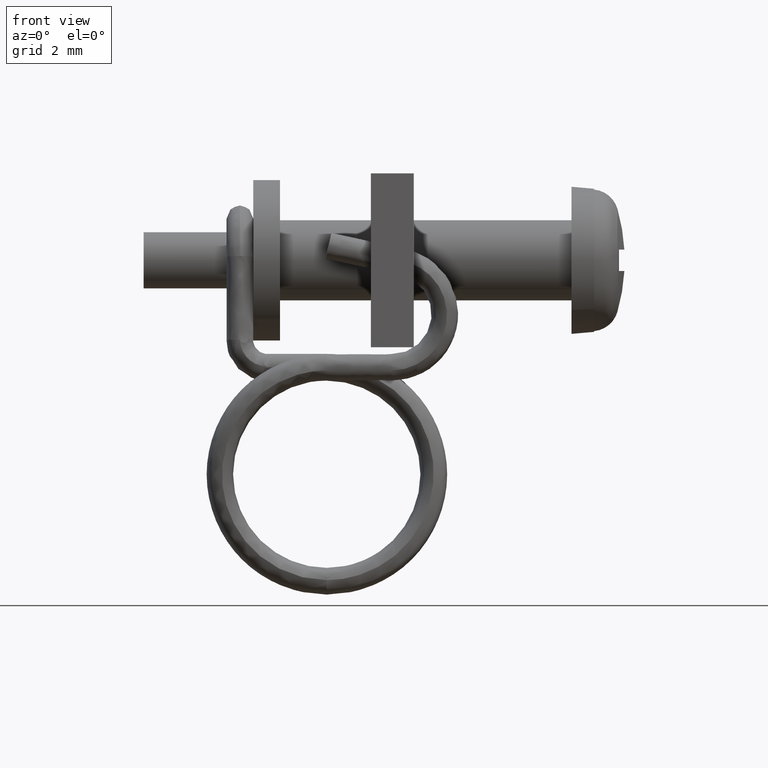
[diagram: clean part render]
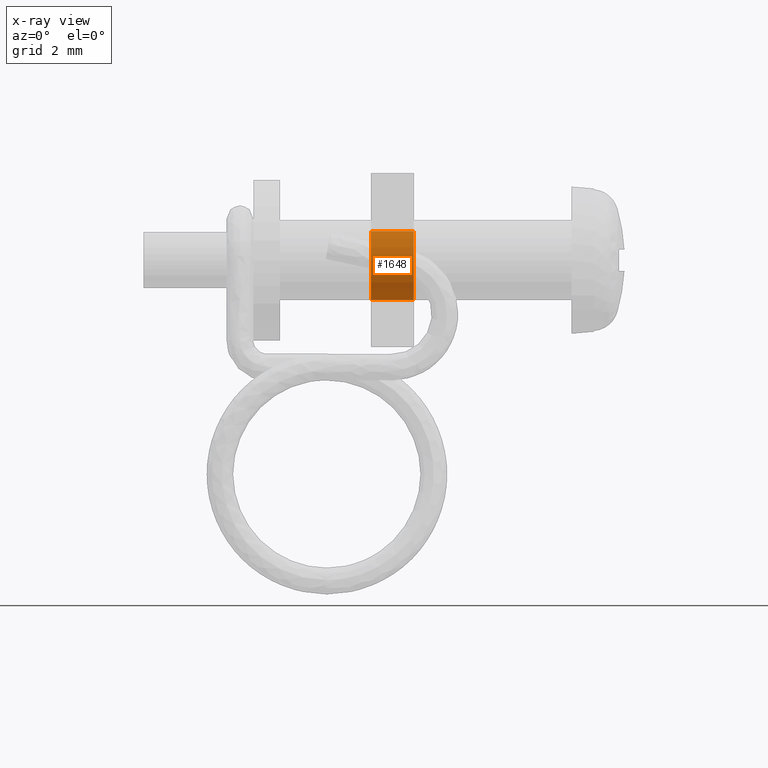
[diagram: x-ray — body ghosted, one internal face saturated and labeled with its STEP entity id]
A machine part, front view, then the same camera in x-ray: the body is ghosted and one INTERNAL B-rep face — a face not visible from any outside direction — is saturated and labeled: STEP entity #1648.
In plain terms, the highlighted face is a freeform B-spline surface patch.
Its self-contained STEP definition (entity closure, byte-faithful):
#1535=CARTESIAN_POINT('',(-7.540000000000000,-1.032531863540631,1.088061556518261));
#1536=CARTESIAN_POINT('',(-7.540000000000000,-2.120593420059062,0.055529692977630));
#1537=CARTESIAN_POINT('',(-7.540000000000000,-1.088061556518431,-1.032531863540801));
#1538=CARTESIAN_POINT('',(-7.540000000000000,-0.055529692977800,-2.120593420059232));
#1539=CARTESIAN_POINT('',(-7.540000000000000,1.032531863540631,-1.088061556518602));
#1540=CARTESIAN_POINT('',(-5.858999999999998,-1.032531863540631,1.088061556518261));
#1541=CARTESIAN_POINT('',(-5.858999999999999,-2.120593420059062,0.055529692977630));
#1542=CARTESIAN_POINT('',(-5.858999999999998,-1.088061556518431,-1.032531863540801));
#1543=CARTESIAN_POINT('',(-5.858999999999999,-0.055529692977800,-2.120593420059232));
#1544=CARTESIAN_POINT('',(-5.858999999999998,1.032531863540631,-1.088061556518602));
#1552=(BOUNDED_SURFACE()B_SPLINE_SURFACE(2,1,((#1535,#1540),(#1536,#1541),(#1537,#1542),(#1538,#1543),(#1539,#1544)),.UNSPECIFIED.,.F.,.F.,.U.)B_SPLINE_SURFACE_WITH_KNOTS((3,2,3),(2,2),(3.141592653589793,4.712388980384690,6.283185307179586),(0.0,1.0),.UNSPECIFIED.)GEOMETRIC_REPRESENTATION_ITEM()RATIONAL_B_SPLINE_SURFACE(((1.0,1.0),(0.707106781186548,0.707106781186548),(1.0,1.0),(0.707106781186548,0.707106781186548),(1.0,1.0)))REPRESENTATION_ITEM('')SURFACE());
#1553=CARTESIAN_POINT('',(-5.900000000000803,-1.032531800917459,1.088061519046354));
#1554=VERTEX_POINT('',#1553);
#1555=CARTESIAN_POINT('',(-5.900000000000000,-1.499999999999974,-0.000000281538430));
#1556=VERTEX_POINT('',#1555);
#1557=CARTESIAN_POINT('',(-5.900000000000803,-1.032531800917459,1.088061519046354));
#1558=CARTESIAN_POINT('',(-5.900000000000751,-1.101527649924507,1.022601850575404));
#1559=CARTESIAN_POINT('',(-5.900000000000656,-1.231182816334653,0.873691384280088));
#1560=CARTESIAN_POINT('',(-5.900000000000412,-1.386354415331849,0.602685362621365));
#1561=CARTESIAN_POINT('',(-5.900000000000290,-1.480044464424608,0.304338985804789));
#1562=CARTESIAN_POINT('',(-5.900000000000042,-1.500008408886573,0.095106643470198));
#1563=CARTESIAN_POINT('',(-5.900000000000000,-1.499999999999974,-0.000000281538430));
#1564=B_SPLINE_CURVE_WITH_KNOTS('',3,(#1557,#1558,#1559,#1560,#1561,#1562,#1563),.UNSPECIFIED.,.F.,.U.,(4,1,1,1,4),(7.158372E-009,0.285322418852800,0.589669938008324,0.932053386780087,1.217375582058588),.UNSPECIFIED.);
#1565=EDGE_CURVE('',#1554,#1556,#1564,.T.);
#1566=ORIENTED_EDGE('',*,*,#1565,.T.);
#1567=CARTESIAN_POINT('',(-5.900000000000000,0.0,-1.500000000000171));
#1568=VERTEX_POINT('',#1567);
#1569=CARTESIAN_POINT('',(-5.900000000000000,-1.499999999999974,-0.000000281538430));
#1570=CARTESIAN_POINT('',(-5.899999999999992,-1.500113129951142,-0.165688642252088));
#1571=CARTESIAN_POINT('',(-5.900000000000005,-1.461998231465147,-0.392646179399904));
#1572=CARTESIAN_POINT('',(-5.900000000000000,-1.339630095209663,-0.687975175501430));
#1573=CARTESIAN_POINT('',(-5.899999999999995,-1.189265077941649,-0.935499621042417));
#1574=CARTESIAN_POINT('',(-5.900000000000016,-0.955745503571000,-1.174807177737116));
#1575=CARTESIAN_POINT('',(-5.899999999999934,-0.683640507078563,-1.344742847117137));
#1576=CARTESIAN_POINT('',(-5.900000000000049,-0.374255342562318,-1.466285730741364));
#1577=CARTESIAN_POINT('',(-5.900000000000031,-0.147270636657687,-1.500063735951231));
#1578=CARTESIAN_POINT('',(-5.900000000000000,0.0,-1.500000000000171));
#1579=B_SPLINE_CURVE_WITH_KNOTS('',3,(#1569,#1570,#1571,#1572,#1573,#1574,#1575,#1576,#1577,#1578),.UNSPECIFIED.,.F.,.U.,(4,1,1,1,1,1,1,4),(0.000000025053693,0.497012994615959,0.681092243780764,0.957217229063044,1.362180125260239,1.675117438829984,1.914422860658952,2.356209115633355),.UNSPECIFIED.);
#1580=EDGE_CURVE('',#1556,#1568,#1579,.T.);
#1581=ORIENTED_EDGE('',*,*,#1580,.T.);
#1582=CARTESIAN_POINT('',(-5.900000000000803,1.032531800917457,-1.088061519046693));
#1583=VERTEX_POINT('',#1582);
#1584=CARTESIAN_POINT('',(-5.900000000000000,0.0,-1.500000000000171));
#1585=CARTESIAN_POINT('',(-5.900000000000067,0.088970957304148,-1.500007292996904));
#1586=CARTESIAN_POINT('',(-5.900000000000225,0.284704585115772,-1.482541028248960));
#1587=CARTESIAN_POINT('',(-5.900000000000445,0.565240062393512,-1.400457558483342));
#1588=CARTESIAN_POINT('',(-5.900000000000635,0.823325914155499,-1.263974881436297));
#1589=CARTESIAN_POINT('',(-5.900000000000764,0.967999326402683,-1.149310194513466));
#1590=CARTESIAN_POINT('',(-5.900000000000803,1.032531800917457,-1.088061519046693));
#1591=B_SPLINE_CURVE_WITH_KNOTS('',3,(#1584,#1585,#1586,#1587,#1588,#1589,#1590),.UNSPECIFIED.,.F.,.U.,(4,1,1,1,4),(6.853101E-009,0.266913979685582,0.587207004478607,0.871919995022012,1.138833967850329),.UNSPECIFIED.);
#1592=EDGE_CURVE('',#1568,#1583,#1591,.T.);
#1593=ORIENTED_EDGE('',*,*,#1592,.T.);
#1594=CARTESIAN_POINT('',(-7.499999999999999,1.032531801091217,-1.088061518881801));
#1595=VERTEX_POINT('',#1594);
#1596=CARTESIAN_POINT('',(-7.499999999999999,1.032531801091217,-1.088061518881801));
#1597=CARTESIAN_POINT('',(-5.900000000000803,1.032531800917457,-1.088061519046693));
#1598=QUASI_UNIFORM_CURVE('',1,(#1596,#1597),.UNSPECIFIED.,.F.,.U.);
#1599=EDGE_CURVE('',#1595,#1583,#1598,.T.);
#1600=ORIENTED_EDGE('',*,*,#1599,.F.);
#1601=CARTESIAN_POINT('',(-7.500000000000000,0.0,-1.500000000000171));
#1602=VERTEX_POINT('',#1601);
#1603=CARTESIAN_POINT('',(-7.500000000000000,0.0,-1.500000000000171));
#1604=CARTESIAN_POINT('',(-7.499999999999996,0.100834762668377,-1.500014755838632));
#1605=CARTESIAN_POINT('',(-7.500000000000012,0.296563590421488,-1.480186386692457));
#1606=CARTESIAN_POINT('',(-7.499999999999987,0.575772088197262,-1.394880733825038));
#1607=CARTESIAN_POINT('',(-7.500000000000027,0.823325948355954,-1.263973945270751));
#1608=CARTESIAN_POINT('',(-7.499999999999997,0.967999791336552,-1.149311159303617));
#1609=CARTESIAN_POINT('',(-7.499999999999999,1.032531801091217,-1.088061518881801));
#1610=B_SPLINE_CURVE_WITH_KNOTS('',3,(#1603,#1604,#1605,#1606,#1607,#1608,#1609),.UNSPECIFIED.,.F.,.U.,(4,1,1,1,4),(6.853170E-009,0.302503014587079,0.587207004602145,0.871919995205422,1.138833968089877),.UNSPECIFIED.);
#1611=EDGE_CURVE('',#1602,#1595,#1610,.T.);
#1612=ORIENTED_EDGE('',*,*,#1611,.F.);
#1613=CARTESIAN_POINT('',(-7.500000000000000,-1.499999999999974,-0.000000281538430));
#1614=VERTEX_POINT('',#1613);
#1615=CARTESIAN_POINT('',(-7.500000000000000,-1.499999999999974,-0.000000281538430));
#1616=CARTESIAN_POINT('',(-7.500000000000007,-1.500028384223728,-0.122720154797015));
#1617=CARTESIAN_POINT('',(-7.499999999999987,-1.473493433026631,-0.337463087728781));
#1618=CARTESIAN_POINT('',(-7.499999999999993,-1.361289031579297,-0.657267239650034));
#1619=CARTESIAN_POINT('',(-7.500000000000017,-1.208866642630177,-0.904636158914845));
#1620=CARTESIAN_POINT('',(-7.499999999999930,-1.016221390334165,-1.111977510217660));
#1621=CARTESIAN_POINT('',(-7.500000000000100,-0.846298760919944,-1.244590185087617));
#1622=CARTESIAN_POINT('',(-7.499999999999863,-0.649148467933149,-1.357871190740954));
#1623=CARTESIAN_POINT('',(-7.500000000000113,-0.380396042640288,-1.465382660696415));
#1624=CARTESIAN_POINT('',(-7.500000000000029,-0.147268840769894,-1.500060812545023));
#1625=CARTESIAN_POINT('',(-7.500000000000000,0.0,-1.500000000000171));
#1626=B_SPLINE_CURVE_WITH_KNOTS('',3,(#1615,#1616,#1617,#1618,#1619,#1620,#1621,#1622,#1623,#1624,#1625),.UNSPECIFIED.,.F.,.U.,(4,1,1,1,1,1,1,1,4),(0.000000025053693,0.368155960646105,0.644277192524137,1.012441796051963,1.233323343282649,1.491037762257990,1.656708174631662,1.914422860658952,2.356209115633355),.UNSPECIFIED.);
#1627=EDGE_CURVE('',#1614,#1602,#1626,.T.);
#1628=ORIENTED_EDGE('',*,*,#1627,.F.);
#1629=CARTESIAN_POINT('',(-7.500000000000000,-1.032531801091219,1.088061518881462));
#1630=VERTEX_POINT('',#1629);
#1631=CARTESIAN_POINT('',(-7.500000000000000,-1.032531801091219,1.088061518881462));
#1632=CARTESIAN_POINT('',(-7.499999999999994,-1.124540582157344,1.000794579682741));
#1633=CARTESIAN_POINT('',(-7.500000000000019,-1.270033978834820,0.822536164743015));
#1634=CARTESIAN_POINT('',(-7.499999999999993,-1.402067535206930,0.553669979822125));
#1635=CARTESIAN_POINT('',(-7.500000000000011,-1.480774423078964,0.285312397945092));
#1636=CARTESIAN_POINT('',(-7.499999999999989,-1.500020501801996,0.107789446436745));
#1637=CARTESIAN_POINT('',(-7.500000000000000,-1.499999999999974,-0.000000281538430));
#1638=B_SPLINE_CURVE_WITH_KNOTS('',3,(#1631,#1632,#1633,#1634,#1635,#1636,#1637),.UNSPECIFIED.,.F.,.U.,(4,1,1,1,4),(7.158433E-009,0.380430441905190,0.684773554229799,0.894009994374206,1.217375581819038),.UNSPECIFIED.);
#1639=EDGE_CURVE('',#1630,#1614,#1638,.T.);
#1640=ORIENTED_EDGE('',*,*,#1639,.F.);
#1641=CARTESIAN_POINT('',(-7.500000000000000,-1.032531801091219,1.088061518881462));
#1642=CARTESIAN_POINT('',(-5.900000000000803,-1.032531800917459,1.088061519046354));
#1643=QUASI_UNIFORM_CURVE('',1,(#1641,#1642),.UNSPECIFIED.,.F.,.U.);
#1644=EDGE_CURVE('',#1630,#1554,#1643,.T.);
#1645=ORIENTED_EDGE('',*,*,#1644,.T.);
#1646=EDGE_LOOP('',(#1566,#1581,#1593,#1600,#1612,#1628,#1640,#1645));
#1647=FACE_OUTER_BOUND('',#1646,.T.);
#1648=ADVANCED_FACE('',(#1647),#1552,.F.);